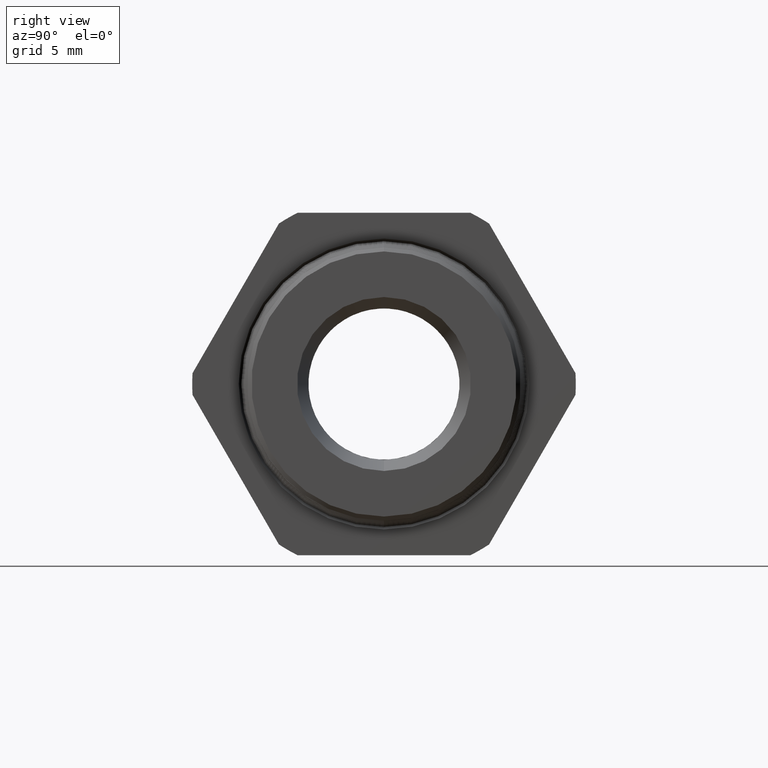
[diagram: clean part render]
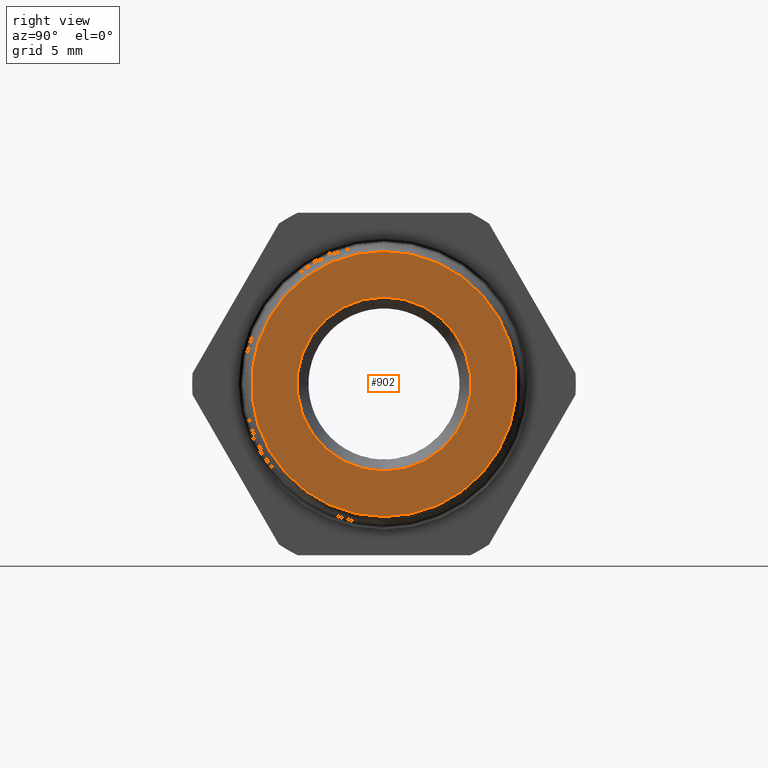
[diagram: same view with one face highlighted and labeled with its STEP entity id]
A machine part, right view. The second image highlights one B-rep face of the part: STEP entity #902.
In plain terms, the highlighted planar face has unit normal (-1, 0, 0).
Its self-contained STEP definition (entity closure, byte-faithful):
#726 = VERTEX_POINT ( 'NONE', #2599 ) ;
#732 = EDGE_CURVE ( 'NONE', #776, #774, #2653, .T. ) ;
#774 = VERTEX_POINT ( 'NONE', #2684 ) ;
#776 = VERTEX_POINT ( 'NONE', #2686 ) ;
#832 = VERTEX_POINT ( 'NONE', #2837 ) ;
#848 = EDGE_CURVE ( 'NONE', #832, #726, #2812, .T. ) ;
#901 = EDGE_CURVE ( 'NONE', #774, #776, #2929, .T. ) ;
#902 = ADVANCED_FACE ( 'NONE', ( #2920, #2919 ), #2918, .F. ) ;
#903 = EDGE_LOOP ( 'NONE', ( #953, #955 ) ) ;
#953 = ORIENTED_EDGE ( 'NONE', *, *, #954, .T. ) ;
#954 = EDGE_CURVE ( 'NONE', #726, #832, #2984, .T. ) ;
#955 = ORIENTED_EDGE ( 'NONE', *, *, #848, .T. ) ;
#956 = EDGE_LOOP ( 'NONE', ( #957, #958 ) ) ;
#957 = ORIENTED_EDGE ( 'NONE', *, *, #732, .T. ) ;
#958 = ORIENTED_EDGE ( 'NONE', *, *, #901, .T. ) ;
#2599 = CARTESIAN_POINT ( 'NONE',  ( 0.5100000000000000100, 0.0000000000000000000, 0.4102329191166588200 ) ) ;
#2647 = DIRECTION ( 'NONE',  ( 0.0000000000000000000, 0.0000000000000000000, 1.000000000000000000 ) ) ;
#2648 = DIRECTION ( 'NONE',  ( -1.000000000000000000, 0.0000000000000000000, 0.0000000000000000000 ) ) ;
#2649 = CARTESIAN_POINT ( 'NONE',  ( 0.5100000000000000100, 0.0000000000000000000, 0.0000000000000000000 ) ) ;
#2650 = AXIS2_PLACEMENT_3D ( 'NONE', #2649, #2648, #2647 ) ;
#2653 = CIRCLE ( 'NONE', #2650, 0.2692514547431565900 ) ;
#2684 = CARTESIAN_POINT ( 'NONE',  ( 0.5100000000000000100, 3.297379322169752000E-017, 0.2692514547431565900 ) ) ;
#2686 = CARTESIAN_POINT ( 'NONE',  ( 0.5100000000000000100, 0.0000000000000000000, -0.2692514547431565900 ) ) ;
#2812 = CIRCLE ( 'NONE', #2875, 0.4102329191166588200 ) ;
#2837 = CARTESIAN_POINT ( 'NONE',  ( 0.5100000000000000100, 5.103939133694166500E-017, -0.4102329191166588200 ) ) ;
#2872 = DIRECTION ( 'NONE',  ( 0.0000000000000000000, 0.0000000000000000000, 1.000000000000000000 ) ) ;
#2873 = DIRECTION ( 'NONE',  ( 1.000000000000000000, 0.0000000000000000000, 0.0000000000000000000 ) ) ;
#2874 = CARTESIAN_POINT ( 'NONE',  ( 0.5100000000000000100, 0.0000000000000000000, 0.0000000000000000000 ) ) ;
#2875 = AXIS2_PLACEMENT_3D ( 'NONE', #2874, #2873, #2872 ) ;
#2914 = DIRECTION ( 'NONE',  ( 0.0000000000000000000, 0.0000000000000000000, 1.000000000000000000 ) ) ;
#2915 = DIRECTION ( 'NONE',  ( -1.000000000000000000, 0.0000000000000000000, 0.0000000000000000000 ) ) ;
#2916 = CARTESIAN_POINT ( 'NONE',  ( 0.5100000000000000100, 0.4227329191166588300, 0.0000000000000000000 ) ) ;
#2917 = AXIS2_PLACEMENT_3D ( 'NONE', #2916, #2915, #2914 ) ;
#2918 = PLANE ( 'NONE',  #2917 ) ;
#2919 = FACE_BOUND ( 'NONE', #956, .T. ) ;
#2920 = FACE_OUTER_BOUND ( 'NONE', #903, .T. ) ;
#2921 = DIRECTION ( 'NONE',  ( 0.0000000000000000000, 0.0000000000000000000, 1.000000000000000000 ) ) ;
#2922 = DIRECTION ( 'NONE',  ( -1.000000000000000000, 0.0000000000000000000, 0.0000000000000000000 ) ) ;
#2923 = CARTESIAN_POINT ( 'NONE',  ( 0.5100000000000000100, 0.0000000000000000000, 0.0000000000000000000 ) ) ;
#2924 = AXIS2_PLACEMENT_3D ( 'NONE', #2923, #2922, #2921 ) ;
#2929 = CIRCLE ( 'NONE', #2924, 0.2692514547431565900 ) ;
#2980 = DIRECTION ( 'NONE',  ( 0.0000000000000000000, 0.0000000000000000000, 1.000000000000000000 ) ) ;
#2981 = DIRECTION ( 'NONE',  ( 1.000000000000000000, 0.0000000000000000000, 0.0000000000000000000 ) ) ;
#2982 = CARTESIAN_POINT ( 'NONE',  ( 0.5100000000000000100, 0.0000000000000000000, 0.0000000000000000000 ) ) ;
#2983 = AXIS2_PLACEMENT_3D ( 'NONE', #2982, #2981, #2980 ) ;
#2984 = CIRCLE ( 'NONE', #2983, 0.4102329191166588200 ) ;